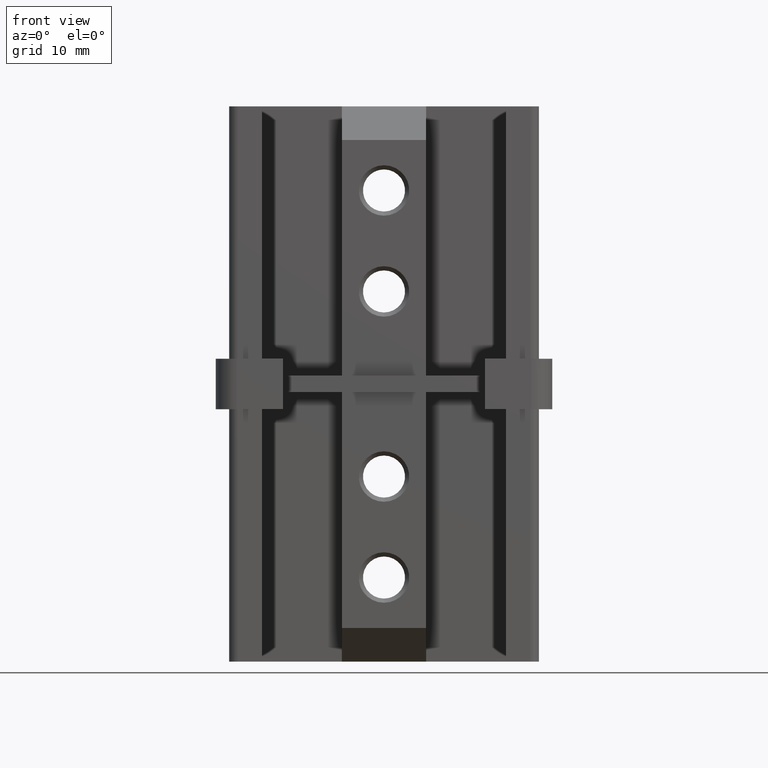
[diagram: clean part render]
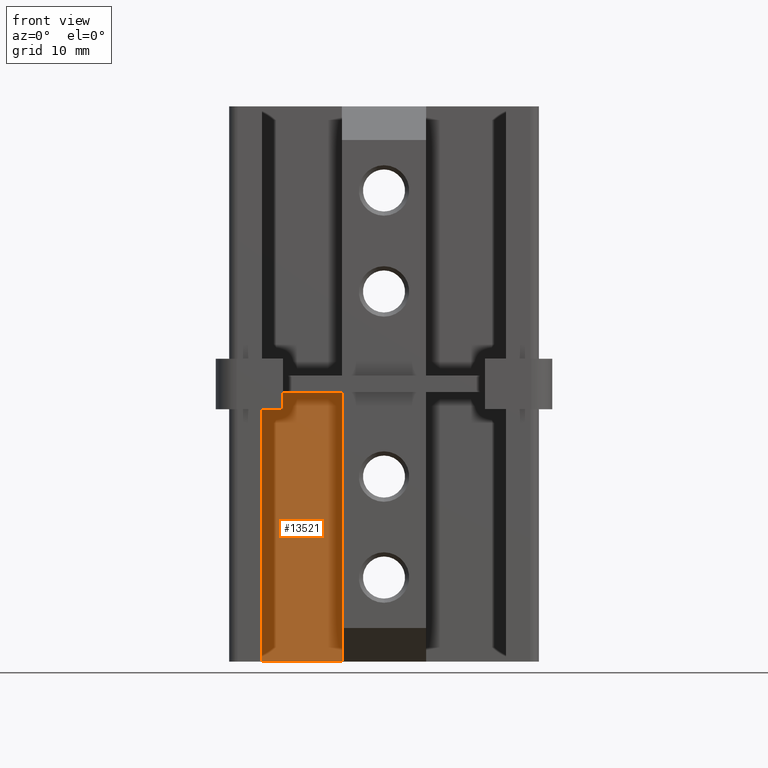
[diagram: same view with one face highlighted and labeled with its STEP entity id]
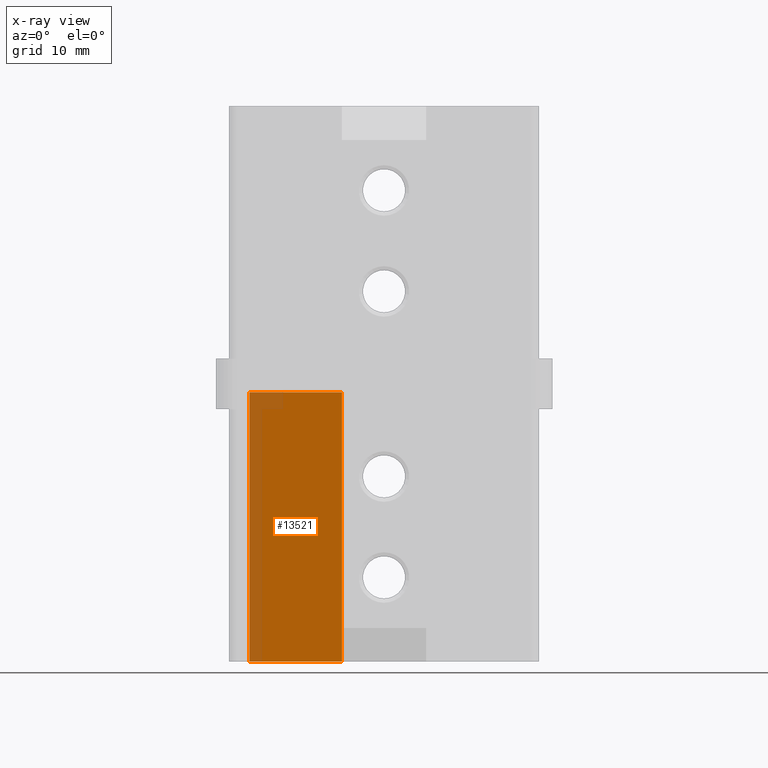
[diagram: x-ray of the same camera — body ghosted, the highlighted face saturated]
A machine part, front view. The second image highlights one B-rep face of the part: STEP entity #13521.
The next image is the same camera in x-ray: the body ghosted, the highlighted face saturated — about 15% of this face is hidden behind the body in this view.
In plain terms, the highlighted planar face has unit normal (-0, 1, 0).
Its self-contained STEP definition (entity closure, byte-faithful):
#505 = EDGE_LOOP ( 'NONE', ( #8648, #13812, #8097, #11170 ) ) ;
#538 = CARTESIAN_POINT ( 'NONE',  ( -5.000000000000000888, 16.00000000000000000, -33.00000000000000000 ) ) ;
#577 = EDGE_CURVE ( 'NONE', #11213, #11916, #12797, .T. ) ;
#587 = CARTESIAN_POINT ( 'NONE',  ( -5.000000000000004441, 16.00000000000000000, -3.000000000000001332 ) ) ;
#848 = DIRECTION ( 'NONE',  ( -1.000000000000000000, 3.154042683594195121E-16, -0.000000000000000000 ) ) ;
#991 = CARTESIAN_POINT ( 'NONE',  ( -16.00000000000000000, 16.00000000000000000, -1.000000000000000000 ) ) ;
#1829 = VERTEX_POINT ( 'NONE', #5655 ) ;
#1999 = PLANE ( 'NONE',  #14110 ) ;
#2278 = VECTOR ( 'NONE', #8486, 1000.000000000000000 ) ;
#2626 = LINE ( 'NONE', #10148, #9866 ) ;
#3164 = LINE ( 'NONE', #587, #2278 ) ;
#3411 = DIRECTION ( 'NONE',  ( 1.000000000000000000, 0.000000000000000000, 0.000000000000000000 ) ) ;
#3997 = VECTOR ( 'NONE', #848, 1000.000000000000000 ) ;
#4312 = DIRECTION ( 'NONE',  ( -0.000000000000000000, 1.000000000000000000, 0.000000000000000000 ) ) ;
#4332 = VECTOR ( 'NONE', #3411, 1000.000000000000000 ) ;
#5655 = CARTESIAN_POINT ( 'NONE',  ( -16.00000000000000000, 16.00000000000000000, -33.00000000000000000 ) ) ;
#7267 = EDGE_CURVE ( 'NONE', #1829, #9474, #7707, .T. ) ;
#7280 = FACE_OUTER_BOUND ( 'NONE', #505, .T. ) ;
#7707 = LINE ( 'NONE', #11338, #4332 ) ;
#8097 = ORIENTED_EDGE ( 'NONE', *, *, #11252, .F. ) ;
#8486 = DIRECTION ( 'NONE',  ( 1.314184451497581013E-16, 0.000000000000000000, 1.000000000000000000 ) ) ;
#8648 = ORIENTED_EDGE ( 'NONE', *, *, #10600, .T. ) ;
#9474 = VERTEX_POINT ( 'NONE', #538 ) ;
#9866 = VECTOR ( 'NONE', #11277, 1000.000000000000000 ) ;
#10148 = CARTESIAN_POINT ( 'NONE',  ( -16.00000000000000000, 16.00000000000000000, -3.000000000000000000 ) ) ;
#10455 = CARTESIAN_POINT ( 'NONE',  ( -5.000000000000000000, 15.99999999999999645, -1.000000000000000000 ) ) ;
#10600 = EDGE_CURVE ( 'NONE', #9474, #11213, #3164, .T. ) ;
#10956 = CARTESIAN_POINT ( 'NONE',  ( -16.00000000000000000, 16.00000000000000000, -1.000000000000000000 ) ) ;
#11170 = ORIENTED_EDGE ( 'NONE', *, *, #7267, .T. ) ;
#11213 = VERTEX_POINT ( 'NONE', #10455 ) ;
#11252 = EDGE_CURVE ( 'NONE', #1829, #11916, #2626, .T. ) ;
#11277 = DIRECTION ( 'NONE',  ( -0.000000000000000000, -0.000000000000000000, 1.000000000000000000 ) ) ;
#11338 = CARTESIAN_POINT ( 'NONE',  ( 16.00000000000000355, 16.00000000000000000, -33.00000000000000000 ) ) ;
#11916 = VERTEX_POINT ( 'NONE', #991 ) ;
#12191 = DIRECTION ( 'NONE',  ( 0.000000000000000000, -0.000000000000000000, 1.000000000000000000 ) ) ;
#12797 = LINE ( 'NONE', #10956, #3997 ) ;
#13521 = ADVANCED_FACE ( 'NONE', ( #7280 ), #1999, .F. ) ;
#13812 = ORIENTED_EDGE ( 'NONE', *, *, #577, .T. ) ;
#14110 = AXIS2_PLACEMENT_3D ( 'NONE', #14443, #4312, #12191 ) ;
#14443 = CARTESIAN_POINT ( 'NONE',  ( -16.00000000000000000, 16.00000000000000000, -3.000000000000000000 ) ) ;